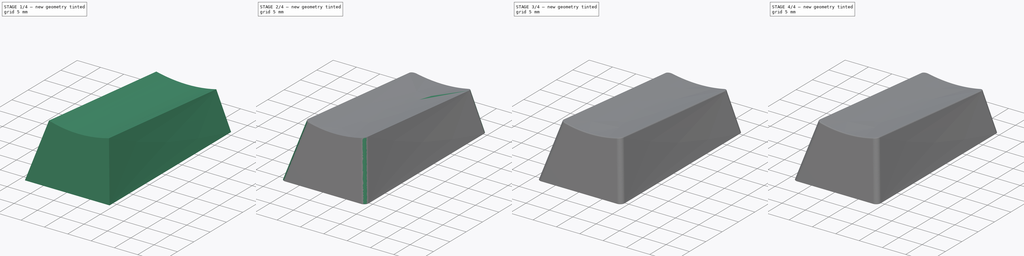
[diagram: build sequence overview — one tinted view per stage of 4, left to right]
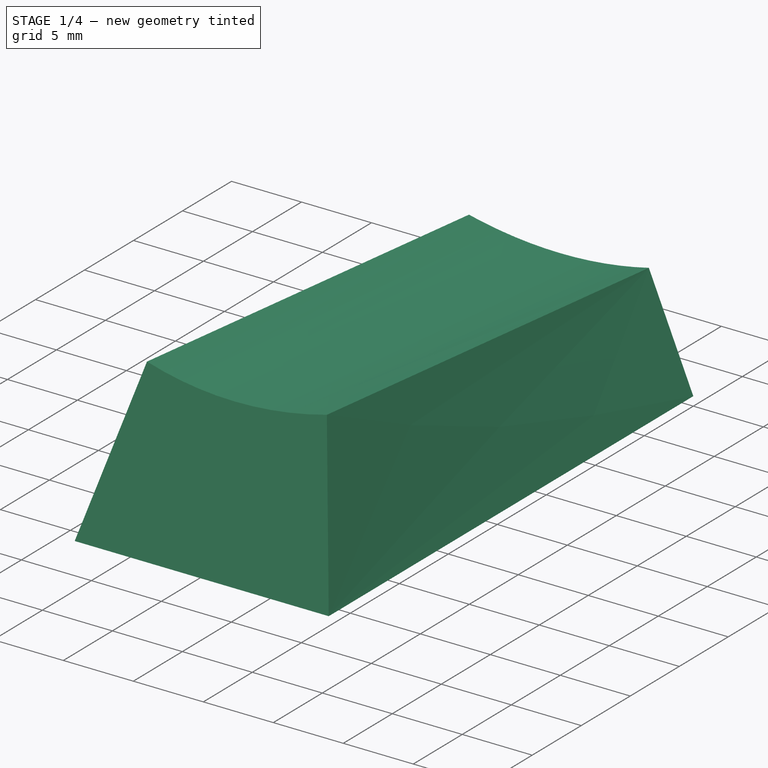
[diagram: stage 1 of 4 — iso view after this stage's code; geometry added in this stage tinted green]
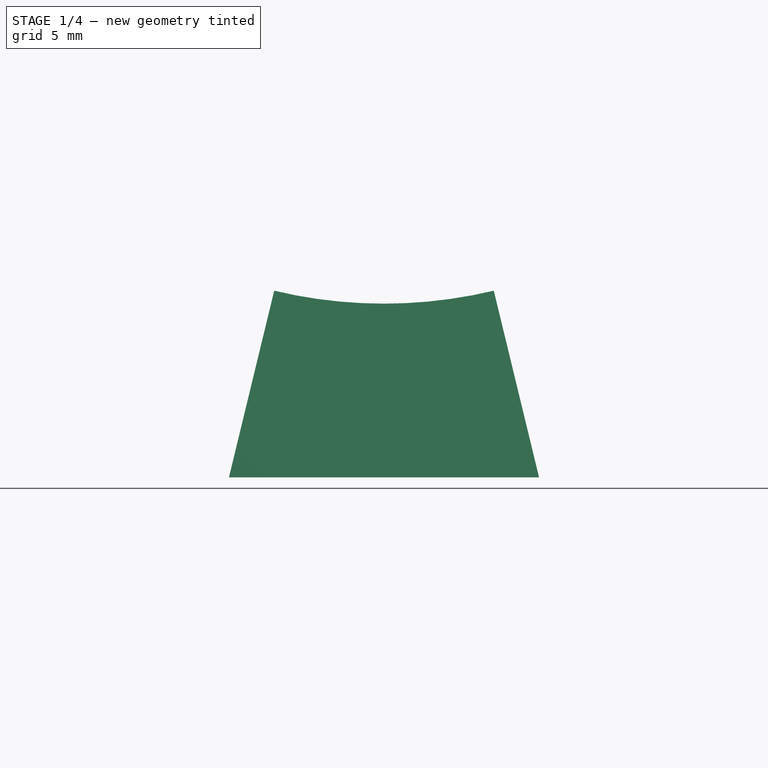
[diagram: stage 1 of 4 — front view after this stage's code; geometry added in this stage tinted green]
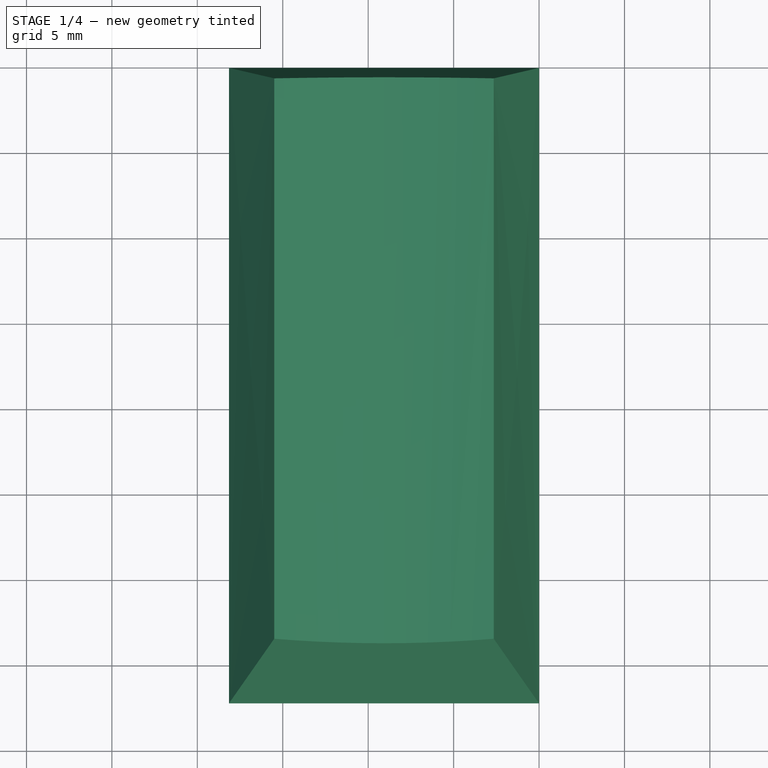
[diagram: stage 1 of 4 — top view after this stage's code; geometry added in this stage tinted green]
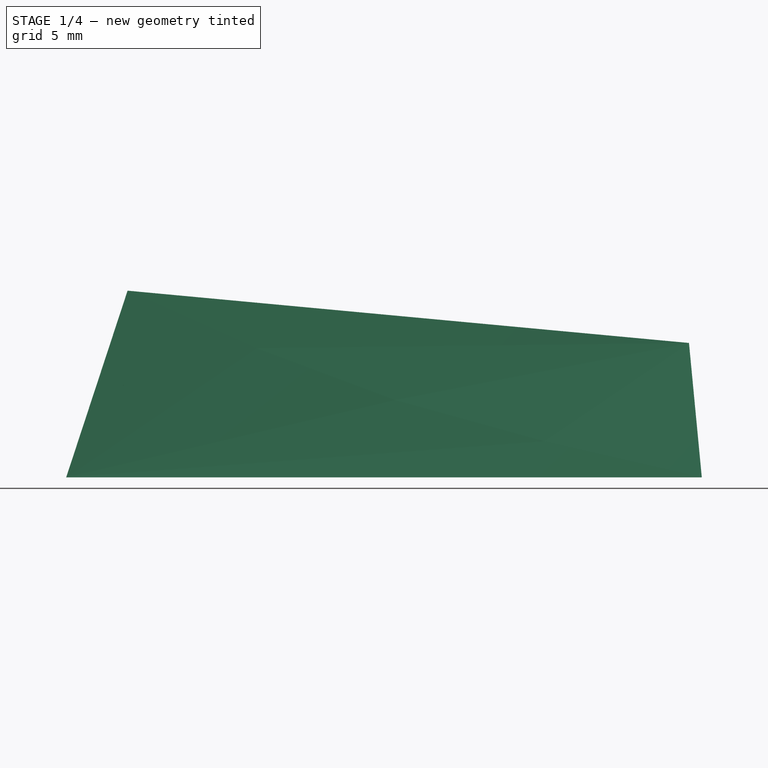
[diagram: stage 1 of 4 — right view after this stage's code; geometry added in this stage tinted green]
FCSTD DOCUMENT  (FreeCAD 1.1R20260325 (Git shallow))
Label: Caps-2U-vertical
License: Creative Commons Attribution 4.0
objects: Sketcher::SketchObject×9, Part::DatumPlane×6, PartDesign::Pad×5, Part::DatumLine×4, PartDesign::Fillet×3, PartDesign::Pocket×2, PartDesign::Chamfer×2, App::Point×1, Spreadsheet::Sheet×1, PartDesign::SubtractiveLoft×1, PartDesign::Thickness×1, PartDesign::Body×1
note: 61 computed .brp shape members not serialized (recipe doc carries the construction recipe); baked Part::Feature solids carry a one-line shape summary decoded from their .brp

FEATURE [App::Point] Origin001
  Role = Origin
FEATURE [Spreadsheet::Sheet] Spreadsheet  label="data"
  cells = A1='row; B1='back; C1='front; A2==hiddenref(Body.Row.String); B2(back)==.B3; C2(front)==.C3; A3='R1; B3(r1back)=8.1; C3(r1front)=11.5; A4='R2; B4(r2back)=7.9; C4(r2front)=10.2; A5='R3; B5(r3back)=9; C5=11.25; A6='R4; B6=12.25; C6=11.9
  expr: .cells.Bind.B2.C2 = tuple(.cells; <<B>> + str(hiddenref(Body.Row) + 3); <<C>> + str(hiddenref(Body.Row) + 3))
FEATURE [Sketcher::SketchObject] Sketch
  ArcFitTolerance = 1e-06
  AttachmentSupport = -> [Origin]
  ExternalTypes = [0,0]
  FullyConstrained = true
  MakeInternals = false
  MapMode = 5
  Placement = pos=(0,0,0) rot=(0.57735,0.57735,0.57735;2.0944rad)
  _ExternalGeoVersion = 1
  expr: Constraints[7] = href(<<OEM>>.Row) > 0 ? <<data>>.r2front : <<data>>.r1front
  expr: Constraints[9] = href(<<OEM>>.Row) > 0 ? <<data>>.r3back : <<data>>.r2back
  sketch-geometry (4):
    g0: LineSegment StartX=0 StartY=0 StartZ=0 EndX=-0.75 EndY=7.86432 EndZ=0
    g1: LineSegment StartX=-0.75 StartY=7.86432 StartZ=0 EndX=-33.6078 EndY=10.9246 EndZ=0
    g2: LineSegment StartX=-33.6078 StartY=10.9246 StartZ=0 EndX=-37.2 EndY=0 EndZ=0
    g3: LineSegment StartX=-37.2 StartY=0 StartZ=0 EndX=0 EndY=0 EndZ=0
  constraints (11):
    c: Coincident(g-1,g0)
    c: Coincident(g0,g1)
    c: Coincident(g1,g2)
    c: PointOnObject(g2,g-1)
    c: Coincident(g2,g3)
    c: Coincident(g3,g0)
    c: Distance(g1,g1) = 33
    c: Distance(g2,g2) = 11.5
    c: DistanceX(g3,g3) = 37.2
    c: Distance(g0,g0) = 7.9
    c: DistanceX(g0,g0) = 0.75
FEATURE [PartDesign::Pad] Pad  label="Main pad"
  Direction = (1,0,0)
  Length = 18.15
  Length2 = 10
  Profile = -> Sketch
  ReferenceAxis = -> Sketch [N_Axis]
  Reversed = true
  SideType = 0
  Suppressed = false
  Type = 0
  Type2 = 0
  expr: Length = href(<<OEM>>.Widthmm)
FEATURE [Sketcher::SketchObject] Sketch001
  ArcFitTolerance = 1e-06
  AttachmentSupport = -> [Pad]
  ExternalGeometry = -> [Pad]
  ExternalTypes = [0]
  FullyConstrained = true
  MakeInternals = false
  MapMode = 5
  Placement = pos=(0,-33.5703,11.0386) rot=(1,0,0;1.25311rad)
  _ExternalGeoVersion = 1
  expr: Constraints[5] = href(<<OEM>>.Widthmm) - 2.65 mm * 2
  sketch-geometry (5):
    g0: LineSegment [constr] StartX=-18.15 StartY=-0.119992 StartZ=0 EndX=0 EndY=-0.119992 EndZ=0
    g1: GeomPoint [constr] X=-9.075 Y=-0.119992 Z=0
    g2: LineSegment StartX=-15.5 StartY=-0.119992 StartZ=0 EndX=-2.65 EndY=-0.119992 EndZ=0
    g3: ArcOfCircle CenterX=-9.075 CenterY=25.2804 CenterZ=0 NormalX=0 NormalY=0 NormalZ=1 AngleXU=0 Radius=26.2004 StartAngle=4.46464 EndAngle=4.96014
    g4: GeomPoint [constr] X=-9.075 Y=-0.919992 Z=0
  constraints (12):
    c: PointOnObject(g0,g-2)
    c: Horizontal(g0)
    c: Symmetric(g0,g0,g1)
    c: PointOnObject(g2,g0)
    c: Symmetric(g2,g2,g1)
    c: DistanceX(g2,g2) = 12.85
    c: Coincident(g3,g2)
    c: Coincident(g3,g2)
    c: PointOnObject(g4,g3)
    c: Vertical(g4,g1)
    c: DistanceY(g4,g1) = 0.8
    c: Coincident(g0,g-3)
FEATURE [Sketcher::SketchObject] Sketch002
  ArcFitTolerance = 1e-06
  AttachmentSupport = -> [Pad]
  ExternalGeometry = -> [Pad]
  ExternalTypes = [0,0]
  FullyConstrained = true
  MakeInternals = false
  MapMode = 5
  Placement = pos=(0,-33.5703,11.0386) rot=(1,0,0;1.25311rad)
  _ExternalGeoVersion = 1
  expr: Constraints[15] = href(<<OEM>>.Widthmm) - 2.65 mm * 2
  sketch-geometry (8):
    g0: LineSegment StartX=-18.15 StartY=-11.62 StartZ=0 EndX=-15.0391 EndY=1.88001 EndZ=0
    g1: LineSegment StartX=0 StartY=-11.62 StartZ=0 EndX=-3.11087 EndY=1.88001 EndZ=0
    g2: LineSegment StartX=-18.15 StartY=1.88001 StartZ=0 EndX=-15.0391 EndY=1.88001 EndZ=0
    g3: LineSegment StartX=0 StartY=1.88001 StartZ=0 EndX=-3.11087 EndY=1.88001 EndZ=0
    g4: GeomPoint [constr] X=-15.5 Y=-0.119992 Z=0
    g5: GeomPoint [constr] X=-2.65 Y=-0.119992 Z=0
    g6: LineSegment StartX=-18.15 StartY=-11.62 StartZ=0 EndX=-18.15 EndY=1.88001 EndZ=0
    g7: LineSegment StartX=0 StartY=1.88001 StartZ=0 EndX=0 EndY=-11.62 EndZ=0
  constraints (21):
    c: Coincident(g0,g-3)
    c: Coincident(g1,g-3)
    c: Horizontal(g0,g1)
    c: Horizontal(g2)
    c: PointOnObject(g3,g-2)
    c: Horizontal(g3)
    c: PointOnObject(g3,g1)
    c: Horizontal(g2,g3)
    c: DistanceY(g-4,g2) = 2
    c: Equal(g2,g3)
    c: Coincident(g0,g2)
    c: PointOnObject(g4,g0)
    c: PointOnObject(g5,g1)
    c: PointOnObject(g5,g-4)
    c: PointOnObject(g4,g-4)
    c: DistanceX(g4,g5) = 12.85
    c: Coincident(g6,g0)
    c: Coincident(g6,g2)
    c: Vertical(g6)
    c: Coincident(g7,g3)
    c: Coincident(g7,g1)
FEATURE [Sketcher::SketchObject] Sketch003
  ArcFitTolerance = 1e-06
  AttachmentSupport = -> [Pad]
  ExternalGeometry = -> [Pad]
  ExternalTypes = [0,0,0]
  FullyConstrained = true
  MakeInternals = false
  MapMode = 5
  Placement = pos=(0,0,0) rot=(0,0.672705,0.739911;3.14159rad)
  _ExternalGeoVersion = 1
  expr: Constraints[20] = href(<<OEM>>.Widthmm) - 2.65 mm * 2
  sketch-geometry (8):
    g0: LineSegment StartX=18.15 StartY=0 StartZ=0 EndX=14.8291 EndY=9.9 EndZ=0
    g1: LineSegment StartX=18.15 StartY=9.9 StartZ=0 EndX=18.15 EndY=0 EndZ=0
    g2: LineSegment StartX=0 StartY=9.9 StartZ=0 EndX=0 EndY=0 EndZ=0
    g3: LineSegment StartX=0 StartY=0 StartZ=0 EndX=3.32089 EndY=9.9 EndZ=0
    g4: LineSegment StartX=18.15 StartY=9.9 StartZ=0 EndX=14.8291 EndY=9.9 EndZ=0
    g5: LineSegment StartX=0 StartY=9.9 StartZ=0 EndX=3.32089 EndY=9.9 EndZ=0
    g6: GeomPoint [constr] X=2.65 Y=7.9 Z=0
    g7: GeomPoint [constr] X=15.5 Y=7.9 Z=0
  constraints (21):
    c: Coincident(g1,g0)
    c: Coincident(g2,g-1)
    c: Coincident(g2,g3)
    c: Vertical(g1)
    c: Horizontal(g4)
    c: PointOnObject(g5,g-2)
    c: Horizontal(g5)
    c: Horizontal(g5,g4)
    c: Coincident(g3,g5)
    c: Equal(g4,g5)
    c: Coincident(g2,g5)
    c: DistanceY(g-3,g2) = 2
    c: Coincident(g1,g4)
    c: PointOnObject(g-3,g1)
    c: Coincident(g0,g4)
    c: Horizontal(g0,g2)
    c: PointOnObject(g7,g0)
    c: PointOnObject(g6,g3)
    c: PointOnObject(g6,g-3)
    c: PointOnObject(g7,g-3)
    c: DistanceX(g6,g7) = 12.85
FEATURE [PartDesign::SubtractiveLoft] SubtractiveLoft  label="Sides"
  BaseFeature = -> Pad
  Closed = false
  Profile = -> Sketch002
  Refine = true
  Ruled = false
  Sections = -> [Sketch003]
  Suppressed = false
FEATURE [PartDesign::Pocket] Pocket  label="Top cylinder"
  BaseFeature = -> SubtractiveLoft
  Direction = (0,0.995691,-0.0927347)
  Length = 5
  Length2 = 5
  Profile = -> Sketch001
  ReferenceAxis = -> Sketch [Edge2]
  SideType = 0
  Suppressed = false
  Type = 1
  Type2 = 0
FEATURE [PartDesign::Thickness] Thickness
  Base = -> Pocket [Face5]
  BaseFeature = -> Pocket
  Intersection = false
  Join = 0
  Mode = 0
  Reversed = true
  SupportTransform = false
  Suppressed = false
  Value = 1.5
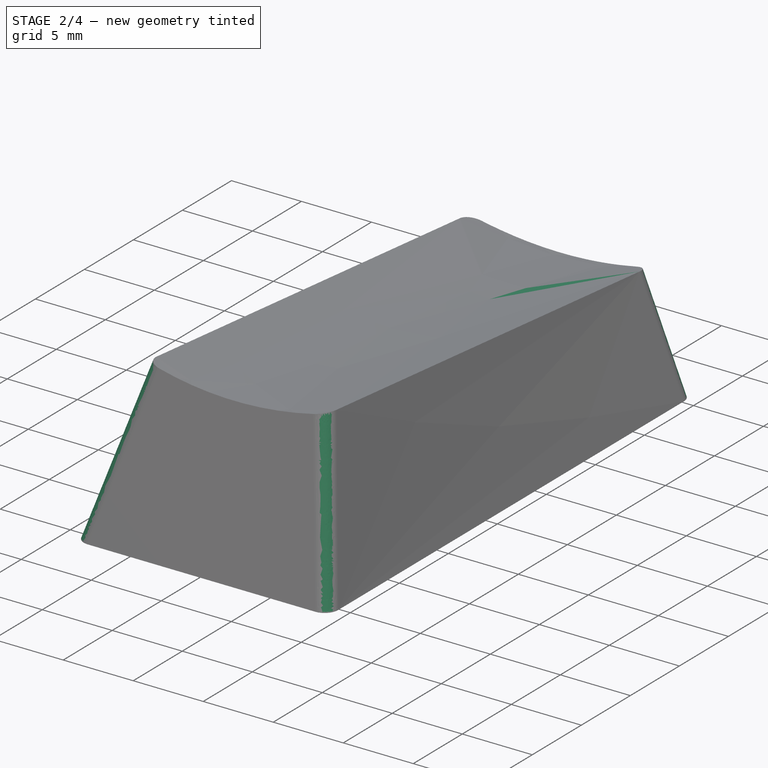
[diagram: stage 2 of 4 — iso view after this stage's code; geometry added in this stage tinted green]
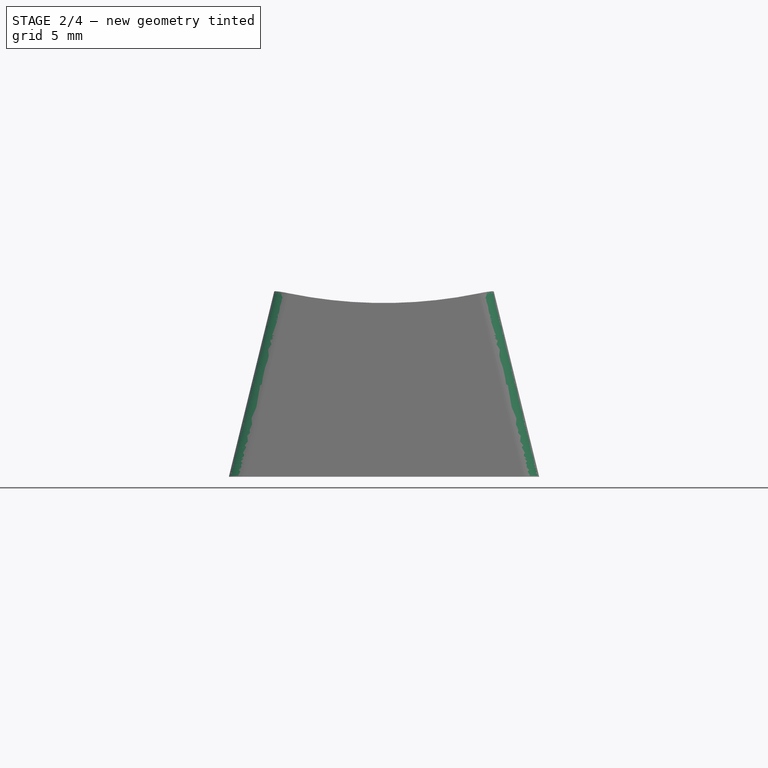
[diagram: stage 2 of 4 — front view after this stage's code; geometry added in this stage tinted green]
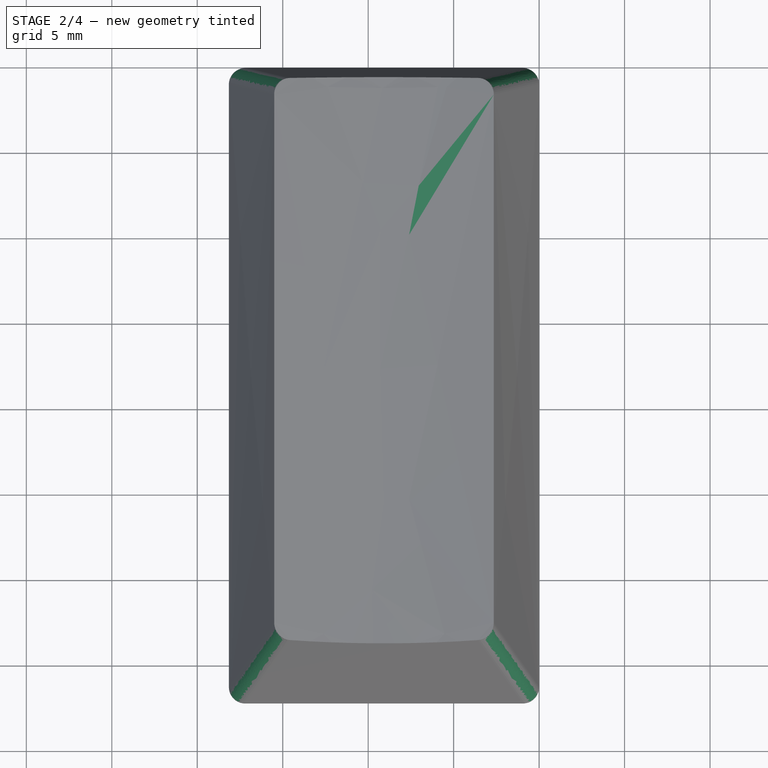
[diagram: stage 2 of 4 — top view after this stage's code; geometry added in this stage tinted green]
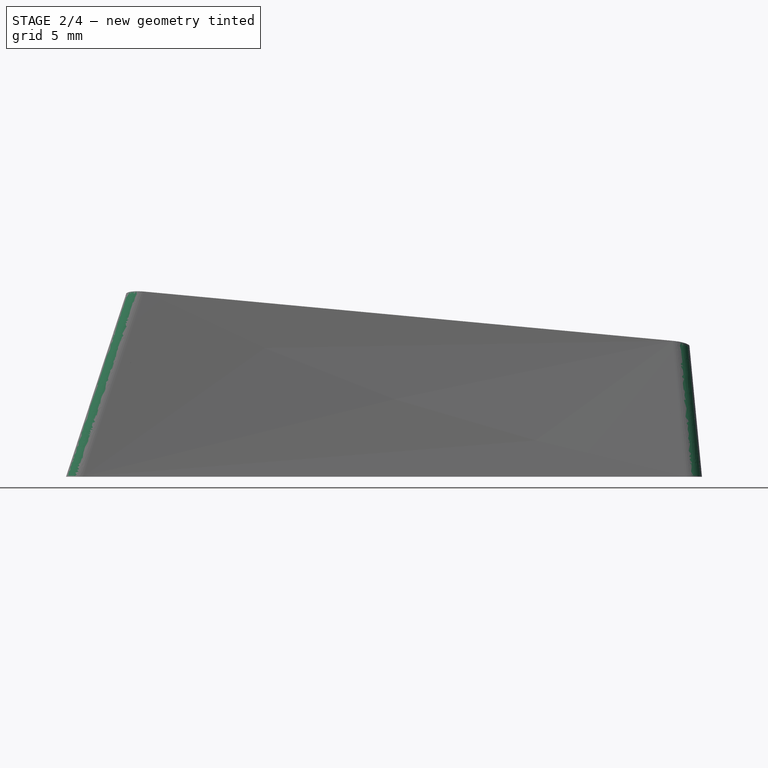
[diagram: stage 2 of 4 — right view after this stage's code; geometry added in this stage tinted green]
FEATURE [Sketcher::SketchObject] Sketch004
  ArcFitTolerance = 1e-06
  AttachmentOffset = pos=(0,0,1.3) rot=(0,0,1;0rad)
  AttachmentSupport = -> [Origin]
  ExternalTypes = [0]
  FullyConstrained = true
  MakeInternals = false
  MapMode = 5
  Placement = pos=(0,0,1.3) rot=(0,0,1;0rad)
  _ExternalGeoVersion = 1
  expr: Constraints[1] = (19.05 + 18.15) / 2
  expr: Constraints[2] = href(<<OEM>>.Widthmm) / 2
  sketch-geometry (13):
    g0: Circle CenterX=-9.075 CenterY=-18.6 CenterZ=0 NormalX=0 NormalY=0 NormalZ=1 AngleXU=0 Radius=2.8
    g1: LineSegment StartX=-9.675 StartY=-16.45 StartZ=0 EndX=-8.475 EndY=-16.45 EndZ=0
    g2: LineSegment StartX=-8.475 StartY=-16.45 StartZ=0 EndX=-8.475 EndY=-18 EndZ=0
    g3: LineSegment StartX=-8.475 StartY=-18 StartZ=0 EndX=-6.925 EndY=-18 EndZ=0
    g4: LineSegment StartX=-6.925 StartY=-18 StartZ=0 EndX=-6.925 EndY=-19.2 EndZ=0
    g5: LineSegment StartX=-6.925 StartY=-19.2 StartZ=0 EndX=-8.475 EndY=-19.2 EndZ=0
    g6: LineSegment StartX=-8.475 StartY=-19.2 StartZ=0 EndX=-8.475 EndY=-20.75 EndZ=0
    g7: LineSegment StartX=-8.475 StartY=-20.75 StartZ=0 EndX=-9.675 EndY=-20.75 EndZ=0
    g8: LineSegment StartX=-9.675 StartY=-20.75 StartZ=0 EndX=-9.675 EndY=-19.2 EndZ=0
    g9: LineSegment StartX=-9.675 StartY=-19.2 StartZ=0 EndX=-11.225 EndY=-19.2 EndZ=0
    g10: LineSegment StartX=-11.225 StartY=-19.2 StartZ=0 EndX=-11.225 EndY=-18 EndZ=0
    g11: LineSegment StartX=-11.225 StartY=-18 StartZ=0 EndX=-9.675 EndY=-18 EndZ=0
    g12: LineSegment StartX=-9.675 StartY=-18 StartZ=0 EndX=-9.675 EndY=-16.45 EndZ=0
  constraints (38):
    c: Diameter(g0) = 5.6
    c: DistanceY(g0,g-1) = 18.6
    c: DistanceX(g0,g-1) = 9.075
    c: Horizontal(g1)
    c: Coincident(g1,g2)
    c: Vertical(g2)
    c: Coincident(g2,g3)
    c: Horizontal(g3)
    c: Coincident(g3,g4)
    c: Vertical(g4)
    c: Coincident(g4,g5)
    c: Horizontal(g5)
    c: Coincident(g5,g6)
    c: Vertical(g6)
    c: Coincident(g6,g7)
    c: Horizontal(g7)
    c: Coincident(g7,g8)
    c: Vertical(g8)
    c: Coincident(g8,g9)
    c: Horizontal(g9)
    c: Coincident(g9,g10)
    c: Vertical(g10)
    c: Coincident(g10,g11)
    c: Horizontal(g11)
    c: Coincident(g11,g12)
    c: Coincident(g12,g1)
    c: Vertical(g12)
    c: Vertical(g11,g8)
    c: Vertical(g2,g5)
    c: Horizontal(g11,g2)
    c: Horizontal(g8,g5)
    c: DistanceY(g4,g4) = 1.2
    c: DistanceX(g1,g1) = 1.2
    c: Equal(g2,g3)
    c: Equal(g3,g9)
    c: Equal(g9,g8)
    c: Symmetric(g8,g2,g0)
    c: DistanceY(g6,g1) = 4.3
FEATURE [Part::DatumPlane] DatumPlane
  AttachmentOffset = pos=(0,0,5.9) rot=(0,0,1;0rad)
  AttachmentSupport = -> [Origin]
  MapMode = 5
  Placement = pos=(0,0,5.9) rot=(0,0,1;0rad)
FEATURE [Part::DatumPlane] DatumPlane001
  AttachmentOffset = pos=(0,0,1.5) rot=(0,0,1;0rad)
  AttachmentSupport = -> [SubtractiveLoft]
  MapMode = 45
  Placement = pos=(-15.3988,-18.8478,4.25157) rot=(0.795764,0.009037,0.605539;3.11374rad)
  expr: .AttachmentOffset.Base.z = Thickness.Value
FEATURE [Part::DatumLine] DatumLine
  AttacherType = Attacher::AttachEngineLine
  AttachmentSupport = -> [DatumPlane001,DatumPlane]
  MapMode = 30
  Placement = pos=(-14.9432,-18.8531,5.9) rot=(0.999966,-0.00582,-0.00582;1.57083rad)
FEATURE [Part::DatumPlane] DatumPlane002
  AttachmentOffset = pos=(0,0,-1.5) rot=(0,0,1;0rad)
  AttachmentSupport = -> [SubtractiveLoft]
  MapMode = 45
  Placement = pos=(-2.75125,-18.8478,4.25157) rot=(0.605505,0.013926,0.79572;3.12352rad)
  expr: .AttachmentOffset.Base.z = -Thickness.Value
FEATURE [Part::DatumLine] DatumLine001
  AttacherType = Attacher::AttachEngineLine
  AttachmentSupport = -> [DatumPlane,DatumPlane002]
  MapMode = 30
  Placement = pos=(-3.4258,-0.0398757,5.9) rot=(-0.004115,0.707101,0.707101;3.14982rad)
FEATURE [Part::DatumPlane] DatumPlane003
  AttachmentOffset = pos=(0,0,-1.5) rot=(0,0,1;0rad)
  AttachmentSupport = -> [SubtractiveLoft]
  MapMode = 5
  Placement = pos=(0,-32.1454,10.57) rot=(1,0,0;1.25311rad)
  expr: .AttachmentOffset.Base.z = -Thickness.Value
FEATURE [Part::DatumLine] DatumLine002
  AttacherType = Attacher::AttachEngineLine
  AttachmentSupport = -> [DatumPlane003,DatumPlane]
  MapMode = 30
  Placement = pos=(0,-33.681,5.9) rot=(0.57735,-0.57735,-0.57735;2.0944rad)
FEATURE [Part::DatumPlane] DatumPlane004
  AttachmentOffset = pos=(0,0,-1.5) rot=(0,0,1;0rad)
  AttachmentSupport = -> [Pad]
  MapMode = 5
  Placement = pos=(0,-1.49322,-0.142405) rot=(0,0.672705,0.739911;3.14159rad)
  expr: .AttachmentOffset.Base.z = -Thickness.Value
FEATURE [Part::DatumLine] DatumLine003
  AttacherType = Attacher::AttachEngineLine
  AttachmentSupport = -> [DatumPlane004,DatumPlane]
  MapMode = 30
  Placement = pos=(0,-2.06947,5.9) rot=(0.57735,0.57735,0.57735;2.0944rad)
FEATURE [Sketcher::SketchObject] Sketch005
  ArcFitTolerance = 1e-06
  AttachmentOffset = pos=(0,0,5.9) rot=(0,0,1;0rad)
  AttachmentSupport = -> [Origin]
  ExternalGeometry = -> [DatumLine001,DatumLine,DatumLine002,DatumLine003]
  ExternalTypes = [0,0,0,0,0]
  FullyConstrained = true
  MakeInternals = false
  MapMode = 5
  Placement = pos=(0,0,5.9) rot=(0,0,1;0rad)
  _ExternalGeoVersion = 1
  expr: Constraints[53] = (19.05 + 18.15) / 2
  sketch-geometry (20):
    g0: LineSegment [constr] StartX=-3.20977 StartY=-18.6 StartZ=0 EndX=-14.9402 EndY=-18.6 EndZ=0
    g1: LineSegment [constr] StartX=-9.07 StartY=-2.06947 StartZ=0 EndX=-9.07 EndY=-33.681 EndZ=0
    g2: LineSegment StartX=-3.21559 StartY=-18.1 StartZ=0 EndX=-3.20395 EndY=-19.1 EndZ=0
    g3: LineSegment StartX=-8.57 StartY=-2.06947 StartZ=0 EndX=-9.57 EndY=-2.06947 EndZ=0
    g4: LineSegment StartX=-3.21559 StartY=-18.1 StartZ=0 EndX=-6.36584 EndY=-18.1 EndZ=0
    g5: LineSegment StartX=-3.20395 StartY=-19.1 StartZ=0 EndX=-6.36584 EndY=-19.1 EndZ=0
    g6: LineSegment StartX=-8.57 StartY=-15.8958 StartZ=0 EndX=-8.57 EndY=-2.06947 EndZ=0
    g7: LineSegment StartX=-9.57 StartY=-15.8958 StartZ=0 EndX=-9.57 EndY=-2.06947 EndZ=0
    g8: LineSegment StartX=-8.57 StartY=-21.3042 StartZ=0 EndX=-8.57 EndY=-33.681 EndZ=0
    g9: LineSegment StartX=-9.57 StartY=-21.3042 StartZ=0 EndX=-9.57 EndY=-33.681 EndZ=0
    g10: LineSegment StartX=-8.57 StartY=-33.681 StartZ=0 EndX=-9.57 EndY=-33.681 EndZ=0
    g11: LineSegment StartX=-11.7742 StartY=-18.1 StartZ=0 EndX=-14.9344 EndY=-18.1 EndZ=0
    g12: LineSegment StartX=-11.7742 StartY=-19.1 StartZ=0 EndX=-14.9461 EndY=-19.1 EndZ=0
    g13: LineSegment StartX=-14.9344 StartY=-18.1 StartZ=0 EndX=-14.9461 EndY=-19.1 EndZ=0
    g14: LineSegment [constr] StartX=-9.07 StartY=-18.6 StartZ=0 EndX=-8.57 EndY=-15.8958 EndZ=0
    g15: LineSegment [constr] StartX=-9.07 StartY=-18.6 StartZ=0 EndX=-9.57 EndY=-21.3042 EndZ=0
    g16: LineSegment StartX=-9.57 StartY=-15.8958 StartZ=0 EndX=-8.57 EndY=-15.8958 EndZ=0
    g17: LineSegment StartX=-6.36584 StartY=-18.1 StartZ=0 EndX=-6.36584 EndY=-19.1 EndZ=0
    g18: LineSegment StartX=-8.57 StartY=-21.3042 StartZ=0 EndX=-9.57 EndY=-21.3042 EndZ=0
    g19: LineSegment StartX=-11.7742 StartY=-19.1 StartZ=0 EndX=-11.7742 EndY=-18.1 EndZ=0
  constraints (54):
    c: Horizontal(g0)
    c: PointOnObject(g0,g-4)
    c: PointOnObject(g0,g-3)
    c: PointOnObject(g1,g-6)
    c: PointOnObject(g1,g-5)
    c: Vertical(g1)
    c: Vertical(g7,g9)
    c: Horizontal(g4,g11)
    c: PointOnObject(g2,g-3)
    c: Symmetric(g2,g2,g0)
    c: DistanceY(g2,g2) = 1
    c: PointOnObject(g3,g-6)
    c: Symmetric(g3,g3,g1)
    c: Coincident(g4,g2)
    c: Coincident(g5,g2)
    c: Coincident(g6,g3)
    c: Coincident(g7,g3)
    c: Coincident(g10,g8)
    c: Coincident(g10,g9)
    c: Horizontal(g12)
    c: Coincident(g13,g11)
    c: Coincident(g12,g13)
    c: PointOnObject(g11,g-4)
    c: PointOnObject(g12,g-4)
    c: Horizontal(g11)
    c: DistanceX(g3,g3) = 1
    c: Vertical(g6)
    c: Horizontal(g4)
    c: Vertical(g8)
    c: Vertical(g9)
    c: PointOnObject(g9,g-5)
    c: PointOnObject(g8,g-5)
    c: PointOnObject(g14,g1)
    c: DistanceX(g14,g-1) = 9.07
    c: Coincident(g14,g6)
    c: Coincident(g15,g14)
    c: Coincident(g15,g9)
    c: Symmetric(g7,g6,g1)
    c: Symmetric(g5,g4,g0)
    c: Symmetric(g9,g8,g1)
    c: Symmetric(g12,g11,g0)
    c: Coincident(g16,g7)
    c: Coincident(g16,g6)
    c: Coincident(g17,g4)
    c: Coincident(g17,g5)
    c: Coincident(g18,g8)
    c: Coincident(g18,g9)
    c: Coincident(g19,g12)
    c: Coincident(g19,g11)
    c: Equal(g15,g14)
    c: Distance(g9,g6) = 5.5
    c: Symmetric(g12,g4,g14)
    c: Distance(g11,g5) = 5.5
    c: DistanceY(g14,g-1) = 18.6
FEATURE [Part::DatumPlane] DatumPlane005
  AttachmentOffset = pos=(0,0,-0.8) rot=(0,0,1;0rad)
  AttachmentSupport = -> [Pad]
  MapMode = 5
  Placement = pos=(0,0.645515,6.93088) rot=(-1,0,0;0.092868rad)
FEATURE [PartDesign::Pad] Pad001  label="Stem"
  BaseFeature = -> Thickness
  Direction = (0,0,1)
  Length = 10
  Length2 = 10
  Profile = -> Sketch004
  ReferenceAxis = -> Sketch004 [N_Axis]
  SideType = 0
  Suppressed = false
  Type = 3
  Type2 = 0
  UpToFace = -> DatumPlane005
  UpToShape = -> [Thickness]
FEATURE [PartDesign::Pad] Pad002  label="Reinforcement"
  BaseFeature = -> Pad001
  Direction = (0,0,1)
  Length = 4.8
  Length2 = 10
  Profile = -> Sketch005
  ReferenceAxis = -> Sketch005 [N_Axis]
  Refine = true
  SideType = 0
  Suppressed = false
  Type = 3
  Type2 = 0
  UpToFace = -> DatumPlane005
FEATURE [PartDesign::Fillet] Fillet  label="External side fillets"
  Base = -> Pad002 [Edge11,Edge3,Edge7,Edge1]
  BaseFeature = -> Pad002
  Radius = 1
  SupportTransform = false
  Suppressed = false
  UseAllEdges = false
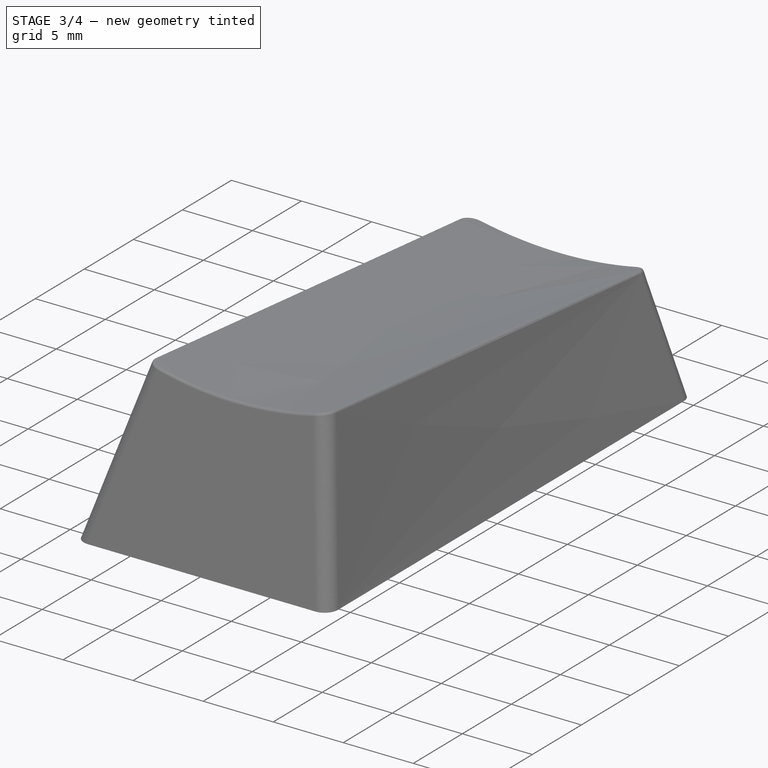
[diagram: stage 3 of 4 — iso view after this stage's code; geometry added in this stage tinted green]
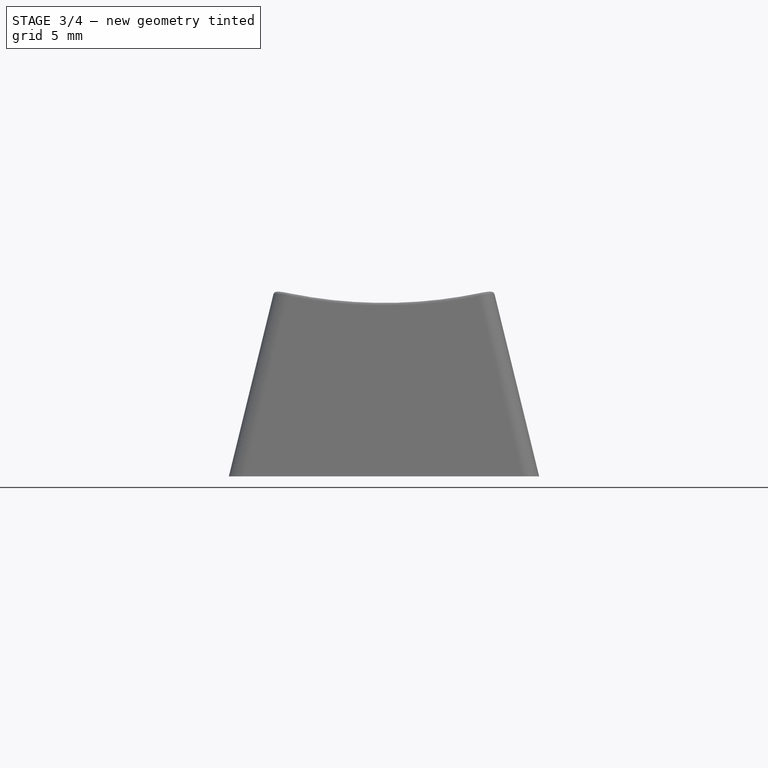
[diagram: stage 3 of 4 — front view after this stage's code; geometry added in this stage tinted green]
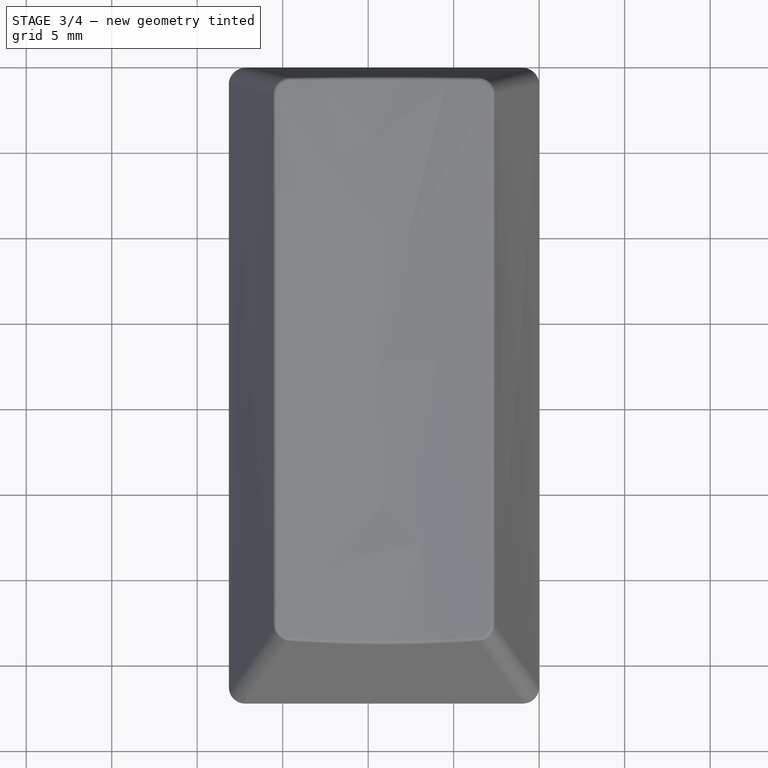
[diagram: stage 3 of 4 — top view after this stage's code; geometry added in this stage tinted green]
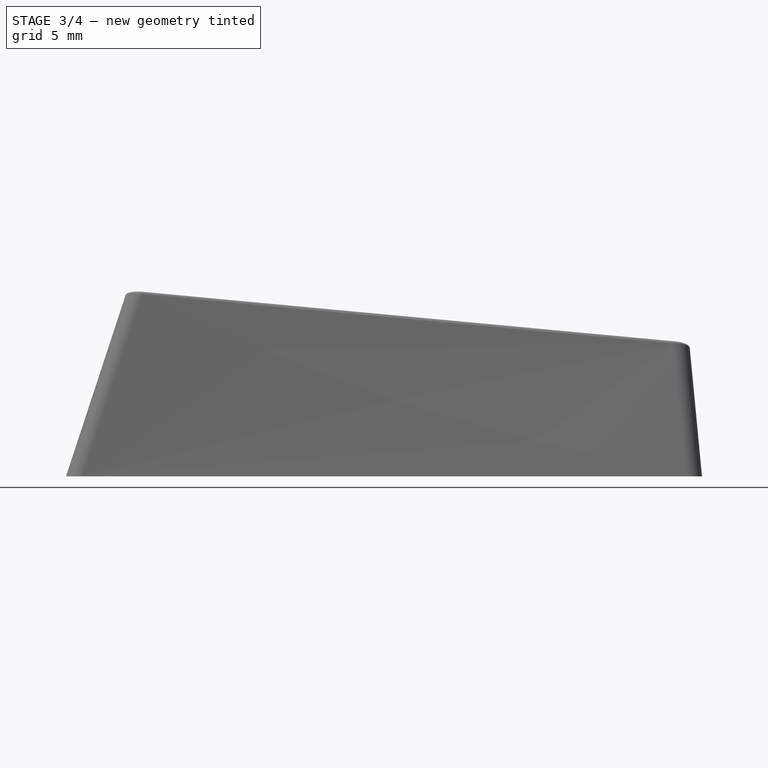
[diagram: stage 3 of 4 — right view after this stage's code; geometry added in this stage tinted green]
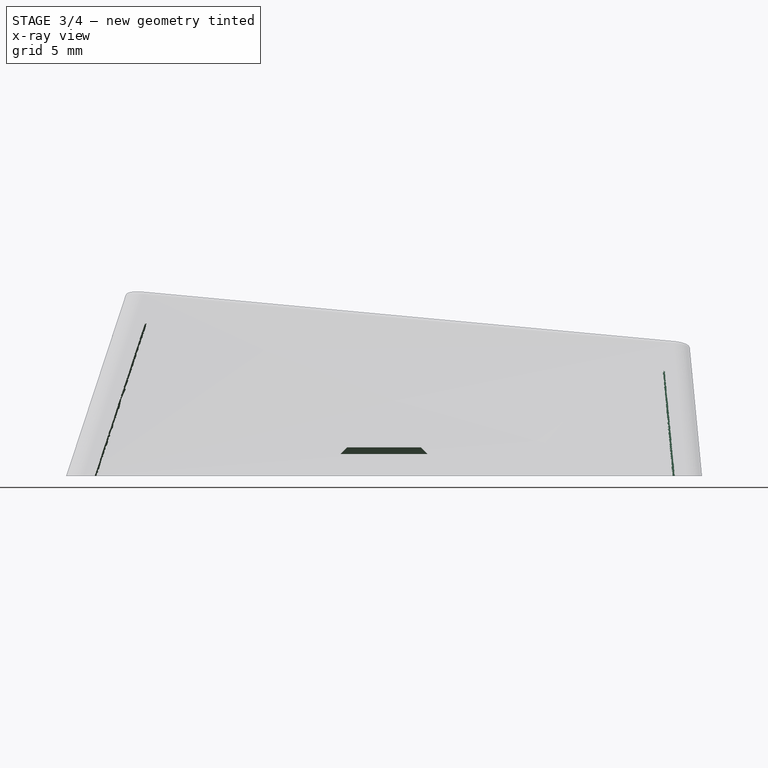
[diagram: stage 3 of 4 — x-ray composite at the right view; earlier geometry ghosted, this stage's added geometry solid]
FEATURE [PartDesign::Fillet] Fillet001  label="Internal side fillets"
  Base = -> Fillet [Edge42,Edge29,Edge36,Edge35]
  BaseFeature = -> Fillet
  Radius = 0.5
  SupportTransform = false
  Suppressed = false
  UseAllEdges = false
FEATURE [PartDesign::Fillet] Fillet002  label="Top fillet"
  Base = -> Fillet001 [Edge60]
  BaseFeature = -> Fillet001
  Radius = 0.2
  SupportTransform = false
  Suppressed = false
  UseAllEdges = false
FEATURE [PartDesign::Chamfer] Chamfer  label="Stem chamfer"
  Angle = 45
  Base = -> Fillet002 [Edge117,Edge114,Edge123,Edge120,Edge116,Edge115,Edge125,Edge124,Edge122,Edge121,Edge119,Edge118]
  BaseFeature = -> Fillet002
  ChamferType = 0
  FlipDirection = false
  Size = 0.4
  Size2 = 1
  SupportTransform = false
  Suppressed = false
  UseAllEdges = false
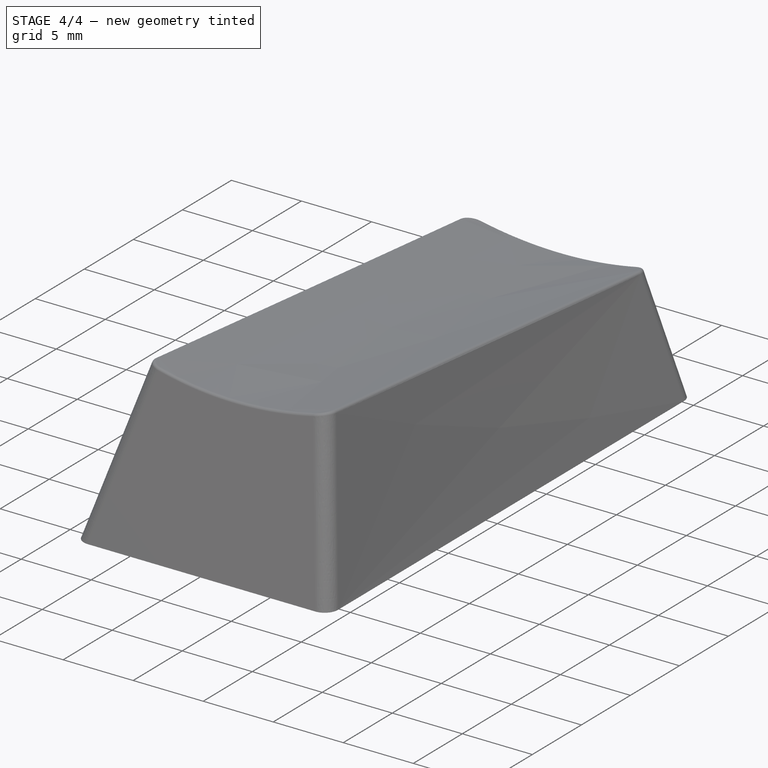
[diagram: stage 4 of 4 — iso view after this stage's code; geometry added in this stage tinted green]
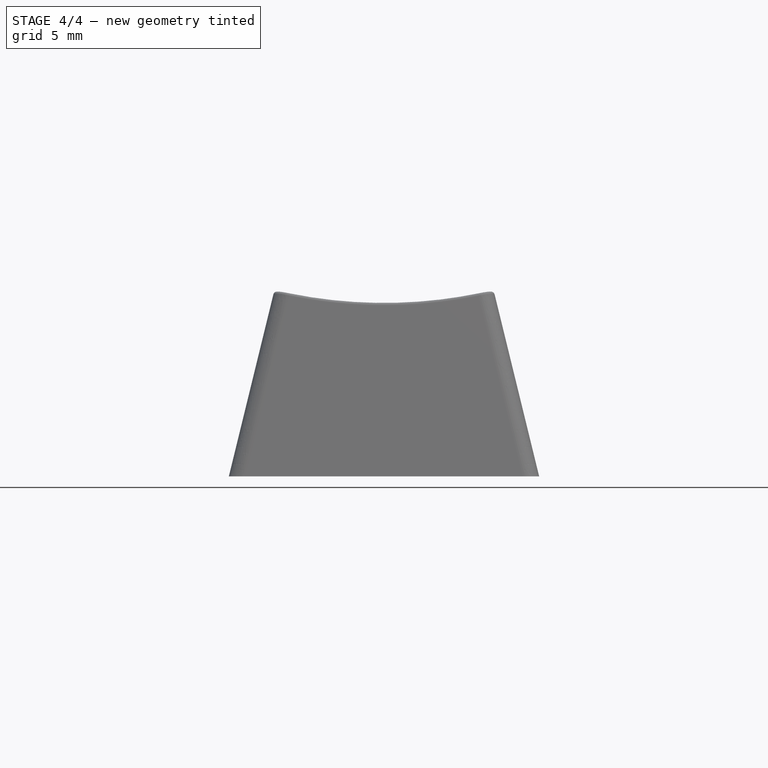
[diagram: stage 4 of 4 — front view after this stage's code; geometry added in this stage tinted green]
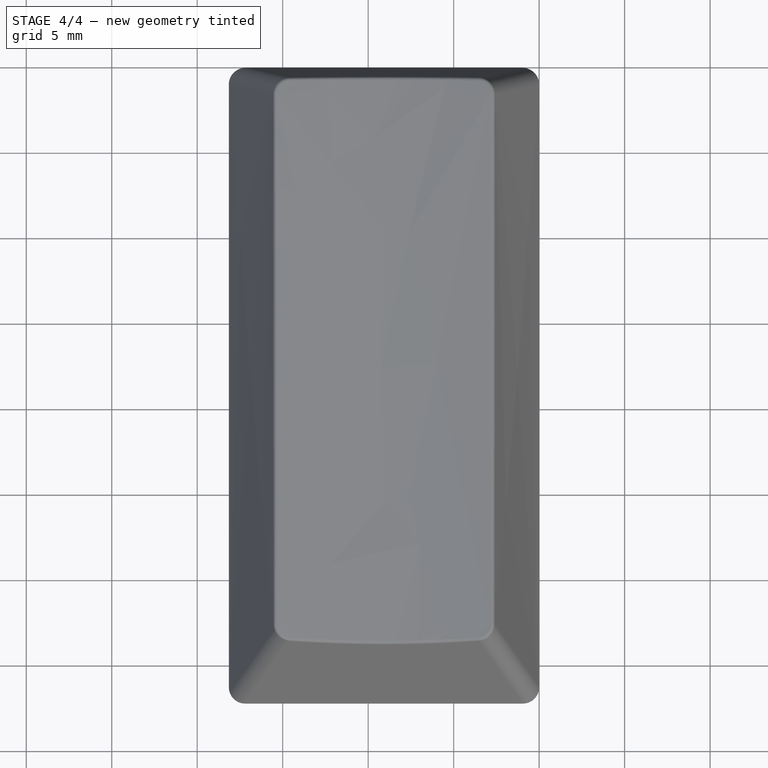
[diagram: stage 4 of 4 — top view after this stage's code; geometry added in this stage tinted green]
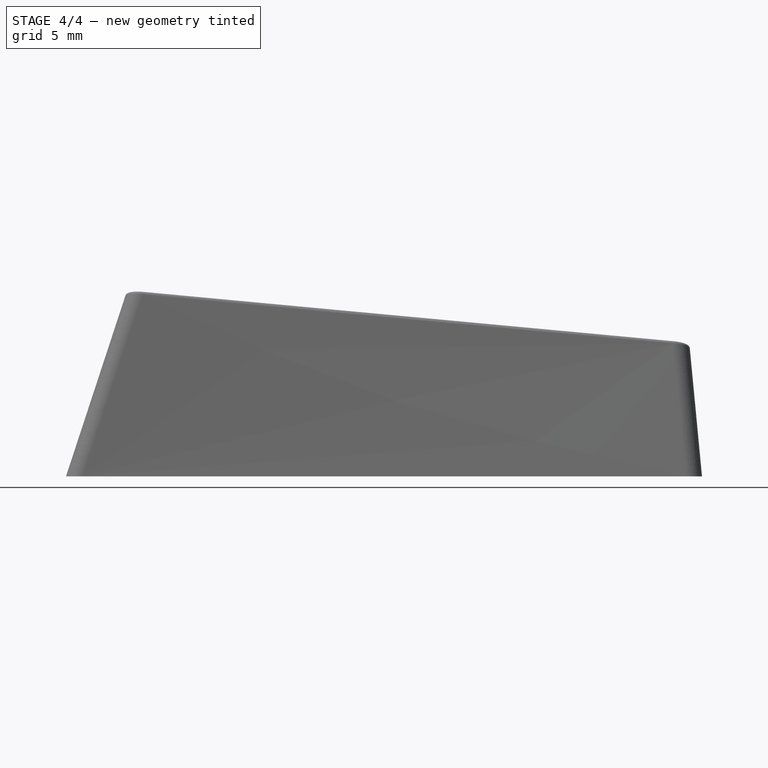
[diagram: stage 4 of 4 — right view after this stage's code; geometry added in this stage tinted green]
FEATURE [Sketcher::SketchObject] Sketch006
  ArcFitTolerance = 1e-06
  AttachmentSupport = -> [DatumPlane]
  ExternalGeometry = -> [Pad,DatumLine003,DatumLine002,DatumLine001,DatumLine]
  ExternalTypes = [0,0,0,0,0,0,0]
  FullyConstrained = true
  MakeInternals = false
  MapMode = 5
  Placement = pos=(0,0,5.9) rot=(0,0,1;0rad)
  _ExternalGeoVersion = 1
  sketch-geometry (12):
    g0: LineSegment StartX=-14.7943 StartY=-6.06 StartZ=0 EndX=-3.35573 EndY=-6.06 EndZ=0
    g1: LineSegment StartX=-3.35573 StartY=-6.06 StartZ=0 EndX=-3.34176 EndY=-7.26 EndZ=0
    g2: LineSegment StartX=-3.34176 StartY=-7.26 StartZ=0 EndX=-14.8082 EndY=-7.26 EndZ=0
    g3: LineSegment StartX=-14.8082 StartY=-7.26 StartZ=0 EndX=-14.7943 EndY=-6.06 EndZ=0
    g4: LineSegment StartX=-15.0722 StartY=-29.94 StartZ=0 EndX=-3.07777 EndY=-29.94 EndZ=0
    g5: LineSegment StartX=-3.07777 StartY=-29.94 StartZ=0 EndX=-3.06381 EndY=-31.14 EndZ=0
    g6: LineSegment StartX=-3.06381 StartY=-31.14 StartZ=0 EndX=-15.0862 EndY=-31.14 EndZ=0
    g7: LineSegment StartX=-15.0862 StartY=-31.14 StartZ=0 EndX=-15.0722 EndY=-29.94 EndZ=0
    g8: GeomPoint [constr] X=-14.8013 Y=-6.66 Z=0
    g9: GeomPoint [constr] X=-15.0792 Y=-30.54 Z=0
    g10: GeomPoint [constr] X=0 Y=-18.6 Z=0
    g11: GeomPoint [constr] X=-14.9402 Y=-18.6 Z=0
  constraints (28):
    c: Horizontal(g0)
    c: Coincident(g0,g1)
    c: Coincident(g1,g2)
    c: Horizontal(g2)
    c: Coincident(g2,g3)
    c: Coincident(g3,g0)
    c: Horizontal(g4)
    c: Coincident(g4,g5)
    c: Coincident(g5,g6)
    c: Horizontal(g6)
    c: Coincident(g6,g7)
    c: Coincident(g7,g4)
    c: PointOnObject(g0,g-7)
    c: PointOnObject(g2,g-7)
    c: PointOnObject(g4,g-7)
    c: PointOnObject(g6,g-7)
    c: DistanceY(g2,g0) = 1.2
    c: PointOnObject(g0,g-6)
    c: PointOnObject(g1,g-6)
    c: DistanceY(g6,g4) = 1.2
    c: PointOnObject(g4,g-6)
    c: PointOnObject(g5,g-6)
    c: Symmetric(g3,g3,g8)
    c: Symmetric(g7,g7,g9)
    c: DistanceY(g9,g8) = 23.88
    c: Symmetric(g-1,g-3,g10)
    c: Horizontal(g11,g10)
    c: Symmetric(g2,g4,g11)
FEATURE [PartDesign::Pad] Pad003  label="Secondary reinforcement"
  BaseFeature = -> Chamfer
  Direction = (0,0,1)
  Length = 10
  Length2 = 10
  Profile = -> Sketch006
  ReferenceAxis = -> Sketch006 [N_Axis]
  Refine = true
  SideType = 0
  Suppressed = false
  Type = 3
  Type2 = 0
  UpToFace = -> DatumPlane005
FEATURE [Sketcher::SketchObject] Sketch007
  ArcFitTolerance = 1e-06
  AttachmentSupport = -> [Pad001]
  ExternalGeometry = -> [Pad001,Pad003]
  ExternalTypes = [0,0,0]
  FullyConstrained = true
  MakeInternals = false
  MapMode = 5
  Placement = pos=(0,0,1.3) rot=(1,0,0;3.14159rad)
  _ExternalGeoVersion = 1
  sketch-geometry (2):
    g0: Circle CenterX=-9.07 CenterY=30.54 CenterZ=0 NormalX=0 NormalY=0 NormalZ=1 AngleXU=0 Radius=2.8
    g1: Circle CenterX=-9.08 CenterY=6.66 CenterZ=0 NormalX=0 NormalY=0 NormalZ=1 AngleXU=0 Radius=2.8
  constraints (4):
    c: Equal(g0,g1)
    c: Diameter(g0) = 5.6
    c: Symmetric(g1,g0,g-3)
    c: Symmetric(g-4,g-5,g0)
FEATURE [PartDesign::Pad] Pad004  label="Stabilizer stem cylinder"
  BaseFeature = -> Pad003
  Direction = (0,0,-1)
  Length = 10
  Length2 = 10
  Profile = -> Sketch007
  ReferenceAxis = -> Sketch007 [N_Axis]
  Refine = true
  SideType = 0
  Suppressed = false
  Type = 3
  Type2 = 0
  UpToFace = -> DatumPlane005
FEATURE [Sketcher::SketchObject] Sketch008
  ArcFitTolerance = 1e-06
  AttachmentSupport = -> [Pad001]
  ExternalGeometry = -> [Sketch007]
  ExternalTypes = [0,0,0,0,0]
  FullyConstrained = true
  MakeInternals = false
  MapMode = 5
  Placement = pos=(0,0,1.3) rot=(1,0,0;3.14159rad)
  _ExternalGeoVersion = 1
  sketch-geometry (24):
    g0: LineSegment StartX=-8.48 StartY=8.785 StartZ=0 EndX=-9.68 EndY=8.785 EndZ=0
    g1: LineSegment StartX=-9.68 StartY=8.785 StartZ=0 EndX=-9.68 EndY=7.26 EndZ=0
    g2: LineSegment StartX=-6.955 StartY=7.26 StartZ=0 EndX=-6.955 EndY=6.06 EndZ=0
    g3: LineSegment StartX=-9.68 StartY=6.06 StartZ=0 EndX=-9.68 EndY=4.535 EndZ=0
    g4: LineSegment StartX=-9.68 StartY=4.535 StartZ=0 EndX=-8.48 EndY=4.535 EndZ=0
    g5: LineSegment StartX=-8.48 StartY=4.535 StartZ=0 EndX=-8.48 EndY=6.06 EndZ=0
    g6: LineSegment StartX=-11.205 StartY=6.06 StartZ=0 EndX=-11.205 EndY=7.26 EndZ=0
    g7: LineSegment StartX=-8.48 StartY=7.26 StartZ=0 EndX=-8.48 EndY=8.785 EndZ=0
    g8: LineSegment StartX=-11.205 StartY=7.26 StartZ=0 EndX=-9.68 EndY=7.26 EndZ=0
    g9: LineSegment StartX=-11.205 StartY=6.06 StartZ=0 EndX=-9.68 EndY=6.06 EndZ=0
    g10: LineSegment StartX=-8.48 StartY=7.26 StartZ=0 EndX=-6.955 EndY=7.26 EndZ=0
    g11: LineSegment StartX=-8.48 StartY=6.06 StartZ=0 EndX=-6.955 EndY=6.06 EndZ=0
    g12: LineSegment StartX=-8.47 StartY=32.665 StartZ=0 EndX=-9.67 EndY=32.665 EndZ=0
    g13: LineSegment StartX=-8.47 StartY=31.14 StartZ=0 EndX=-8.47 EndY=32.665 EndZ=0
    g14: LineSegment StartX=-8.47 StartY=31.14 StartZ=0 EndX=-6.945 EndY=31.14 EndZ=0
    g15: LineSegment StartX=-6.945 StartY=31.14 StartZ=0 EndX=-6.945 EndY=29.94 EndZ=0
    g16: LineSegment StartX=-8.47 StartY=29.94 StartZ=0 EndX=-6.945 EndY=29.94 EndZ=0
    g17: LineSegment StartX=-8.47 StartY=28.415 StartZ=0 EndX=-8.47 EndY=29.94 EndZ=0
    g18: LineSegment StartX=-9.67 StartY=28.415 StartZ=0 EndX=-8.47 EndY=28.415 EndZ=0
    g19: LineSegment StartX=-9.67 StartY=29.94 StartZ=0 EndX=-9.67 EndY=28.415 EndZ=0
    g20: LineSegment StartX=-11.195 StartY=29.94 StartZ=0 EndX=-9.67 EndY=29.94 EndZ=0
    g21: LineSegment StartX=-11.195 StartY=29.94 StartZ=0 EndX=-11.195 EndY=31.14 EndZ=0
    g22: LineSegment StartX=-11.195 StartY=31.14 StartZ=0 EndX=-9.67 EndY=31.14 EndZ=0
    g23: LineSegment StartX=-9.67 StartY=32.665 StartZ=0 EndX=-9.67 EndY=31.14 EndZ=0
  constraints (70):
    c: Horizontal(g0)
    c: Coincident(g0,g1)
    c: Vertical(g1)
    c: Vertical(g2)
    c: Vertical(g3)
    c: Coincident(g3,g4)
    c: Horizontal(g4)
    c: Coincident(g4,g5)
    c: Vertical(g5)
    c: Vertical(g6)
    c: Coincident(g7,g0)
    c: Vertical(g7)
    c: Horizontal(g7,g1)
    c: Horizontal(g5,g3)
    c: Vertical(g7,g5)
    c: Vertical(g1,g3)
    c: Equal(g0,g2)
    c: Symmetric(g5,g1,g-3)
    c: Coincident(g8,g6)
    c: Coincident(g8,g1)
    c: Horizontal(g8)
    c: Coincident(g9,g6)
    c: Coincident(g9,g3)
    c: Horizontal(g9)
    c: Coincident(g10,g7)
    c: Coincident(g10,g2)
    c: Horizontal(g10)
    c: Coincident(g11,g5)
    c: Coincident(g11,g2)
    c: Horizontal(g11)
    c: Equal(g7,g10)
    c: Equal(g10,g9)
    c: Equal(g9,g3)
    c: DistanceX(g6,g2) = 4.25
    c: DistanceX(g0,g0) = 1.2
    c: Horizontal(g12)
    c: Coincident(g12,g23)
    c: Vertical(g23)
    c: Vertical(g15)
    c: Vertical(g19)
    c: Coincident(g19,g18)
    c: Horizontal(g18)
    c: Coincident(g18,g17)
    c: Vertical(g17)
    c: Vertical(g21)
    c: Coincident(g13,g12)
    c: Vertical(g13)
    c: Horizontal(g13,g23)
    c: Horizontal(g17,g19)
    c: Vertical(g13,g17)
    c: Vertical(g23,g19)
    c: Equal(g12,g15)
    c: Coincident(g22,g21)
    c: Coincident(g22,g23)
    c: Horizontal(g22)
    c: Coincident(g20,g21)
    c: Coincident(g20,g19)
    c: Horizontal(g20)
    c: Coincident(g14,g13)
    c: Coincident(g14,g15)
    c: Horizontal(g14)
    c: Coincident(g16,g17)
    c: Coincident(g16,g15)
    c: Horizontal(g16)
    c: Equal(g13,g14)
    c: Equal(g14,g20)
    c: Equal(g20,g19)
    c: DistanceX(g21,g15) = 4.25
    c: DistanceX(g12,g12) = 1.2
    c: Symmetric(g19,g13,g-4)
FEATURE [PartDesign::Pocket] Pocket001  label="Stabilizer crosses"
  BaseFeature = -> Pad004
  Direction = (0,0,1)
  Length = 5
  Length2 = 1
  Profile = -> Sketch008
  ReferenceAxis = -> Sketch008 [N_Axis]
  SideType = 1
  Suppressed = false
  Type = 3
  Type2 = 0
  UpToFace = -> Pad004 [Face31]
FEATURE [PartDesign::Chamfer] Chamfer001
  Angle = 45
  Base = -> Pocket001 [Edge218,Edge219,Edge220,Edge221,Edge222,Edge223,Edge224,Edge225,Edge226,Edge215,Edge216,Edge217,Edge231,Edge232,Edge233,Edge234,Edge235,Edge236,Edge237,Edge238,Edge239,Edge240,Edge229,Edge230]
  BaseFeature = -> Pocket001
  ChamferType = 0
  FlipDirection = false
  Size = 0.4
  Size2 = 1
  SupportTransform = false
  Suppressed = false
  UseAllEdges = false
FEATURE [PartDesign::Body] Body  label="OEM"
  AllowCompound = true
  Group = -> [Sketch,Pad,SubtractiveLoft,Sketch001,Pocket,Sketch002,Sketch003,Thickness,DatumPlane005,Pad001,DatumPlane,DatumPlane001,DatumLine,DatumPlane002,DatumLine001,DatumPlane003,DatumLine002,DatumPlane004,DatumLine003,Pad002,Fillet,Fillet001,Fillet002,Sketch004,Sketch005,Chamfer,Sketch006,Pad003,Sketch007,Pad004,Sketch008,Pocket001,Chamfer001]
  Origin = -> Origin
  Placement = pos=(0,0,0) rot=(0,0,1;1.5708rad)
  Row = 0
  Tip = -> Chamfer001
  Widthmm = 18.15
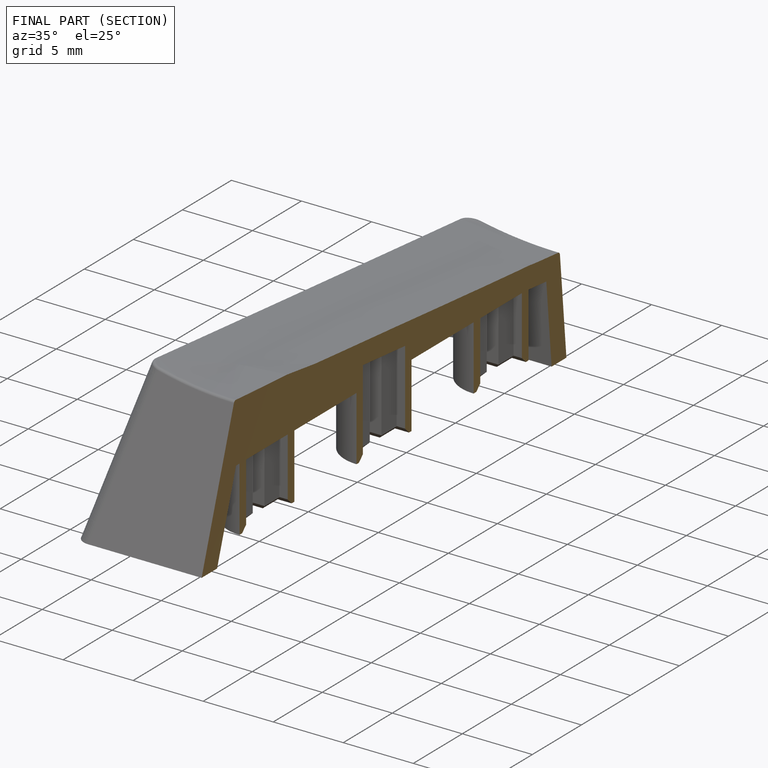
[diagram: finished part — half-section view (interior)]
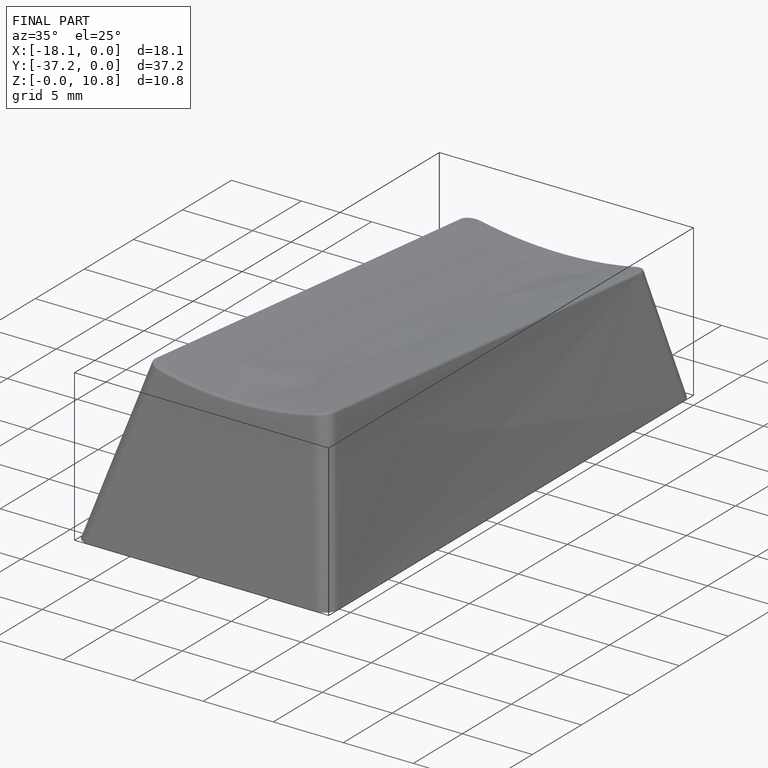
[diagram: finished part — iso view with bounding-box wireframe]
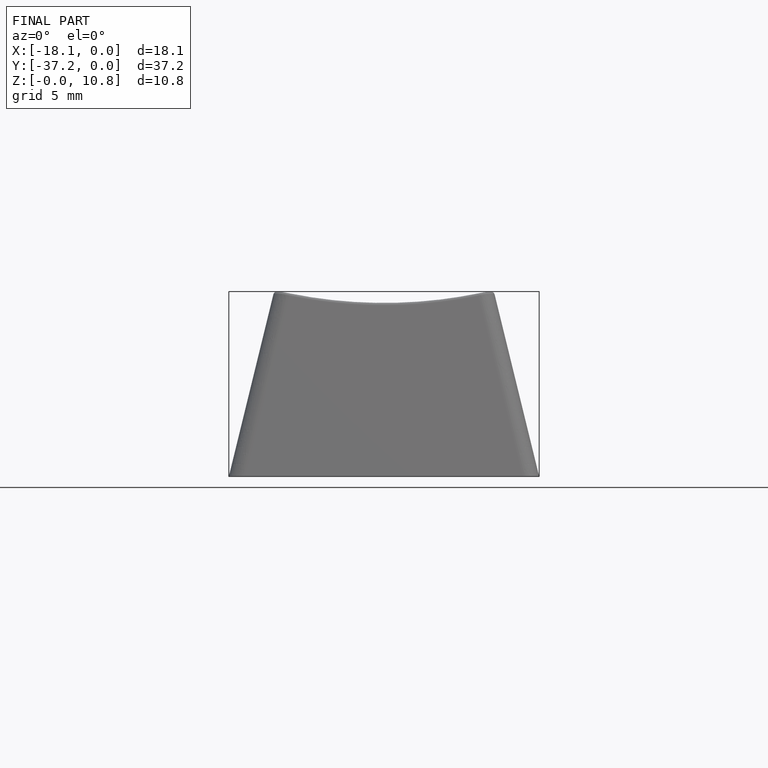
[diagram: finished part — front view with bounding-box wireframe]
